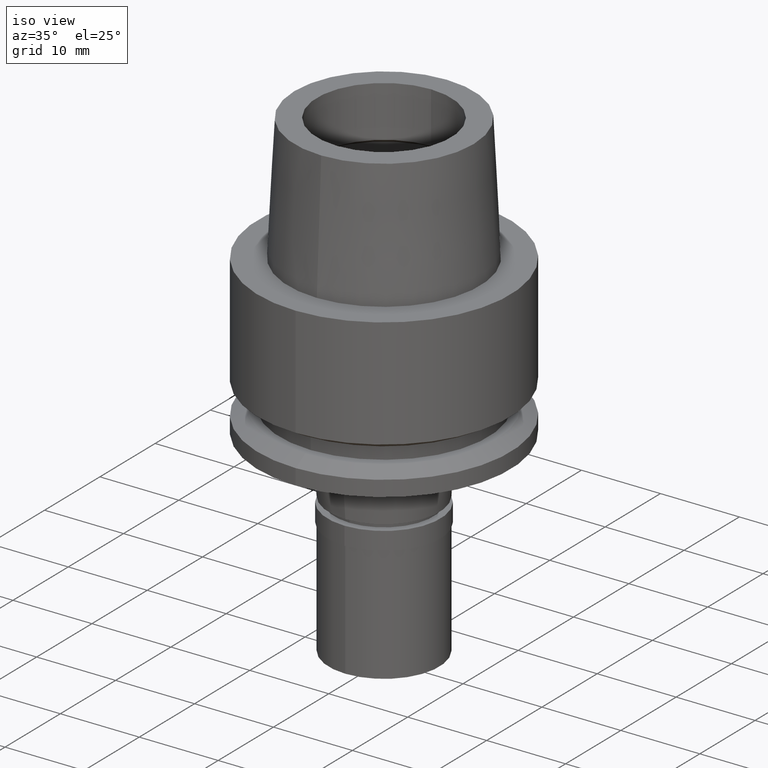
[diagram: clean part render]
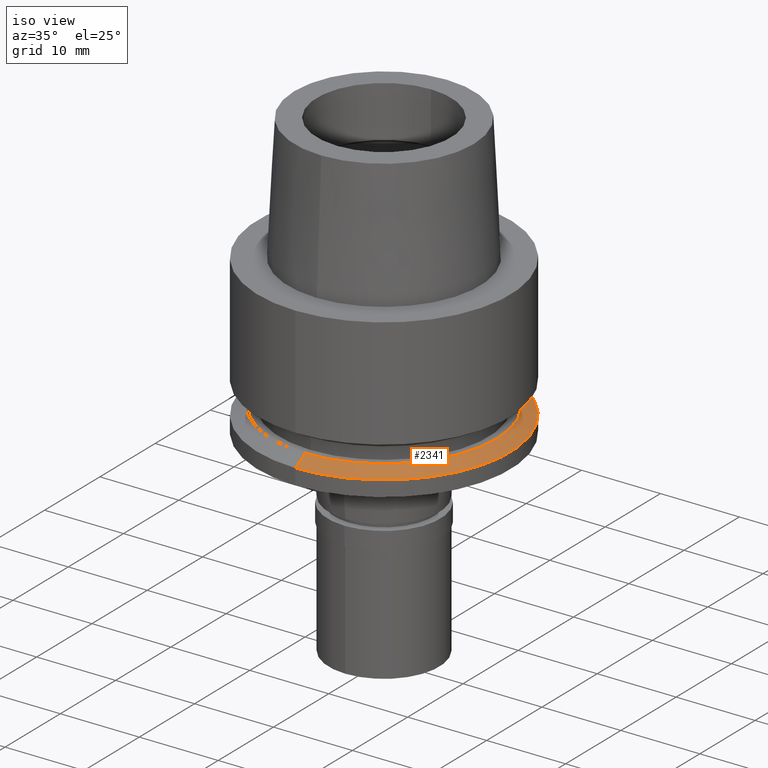
[diagram: same view with one face highlighted and labeled with its STEP entity id]
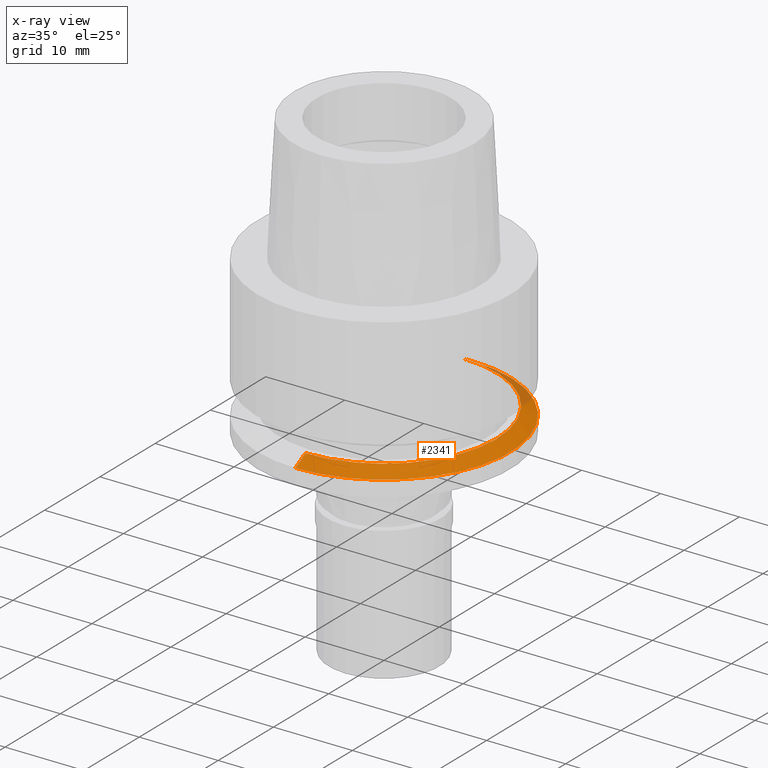
[diagram: x-ray of the same camera — body ghosted, the highlighted face saturated]
A machine part, iso view. The second image highlights one B-rep face of the part: STEP entity #2341.
The next image is the same camera in x-ray: the body ghosted, the highlighted face saturated — about 7% of this face is hidden behind the body in this view.
In plain terms, the highlighted conical surface has half-angle 60 deg.
Its self-contained STEP definition (entity closure, byte-faithful):
#56 = AXIS2_PLACEMENT_3D ( 'NONE', #1967, #2143, #1745 ) ;
#87 = VERTEX_POINT ( 'NONE', #1931 ) ;
#106 = EDGE_CURVE ( 'NONE', #861, #1443, #1544, .T. ) ;
#157 = EDGE_CURVE ( 'NONE', #876, #1443, #2019, .T. ) ;
#290 = EDGE_CURVE ( 'NONE', #87, #876, #1941, .T. ) ;
#339 = CARTESIAN_POINT ( 'NONE',  ( 0.0000000000000000000, 14.23205080756999941, -17.00000000000000000 ) ) ;
#423 = CARTESIAN_POINT ( 'NONE',  ( 0.0000000000000000000, -14.23205080756999941, -17.00000000000000000 ) ) ;
#498 = CARTESIAN_POINT ( 'NONE',  ( 0.0000000000000000000, -16.00000000000000000, -18.02072594216000212 ) ) ;
#565 = EDGE_CURVE ( 'NONE', #87, #861, #2597, .T. ) ;
#650 = DIRECTION ( 'NONE',  ( 0.0000000000000000000, 0.0000000000000000000, -1.000000000000000000 ) ) ;
#800 = VECTOR ( 'NONE', #2569, 1000.000000000000000 ) ;
#861 = VERTEX_POINT ( 'NONE', #1871 ) ;
#876 = VERTEX_POINT ( 'NONE', #423 ) ;
#891 = AXIS2_PLACEMENT_3D ( 'NONE', #1387, #1347, #2606 ) ;
#954 = FACE_OUTER_BOUND ( 'NONE', #2280, .T. ) ;
#1004 = CARTESIAN_POINT ( 'NONE',  ( 0.0000000000000000000, -14.23205080756999941, -17.00000000000000000 ) ) ;
#1053 = CARTESIAN_POINT ( 'NONE',  ( 0.0000000000000000000, 0.0000000000000000000, -17.00000000000000000 ) ) ;
#1284 = ORIENTED_EDGE ( 'NONE', *, *, #106, .F. ) ;
#1291 = DIRECTION ( 'NONE',  ( 0.0000000000000000000, 1.000000000000000000, 0.0000000000000000000 ) ) ;
#1347 = DIRECTION ( 'NONE',  ( 0.0000000000000000000, 0.0000000000000000000, -1.000000000000000000 ) ) ;
#1387 = CARTESIAN_POINT ( 'NONE',  ( 0.0000000000000000000, 0.0000000000000000000, -17.51036297107999928 ) ) ;
#1442 = ORIENTED_EDGE ( 'NONE', *, *, #565, .F. ) ;
#1443 = VERTEX_POINT ( 'NONE', #498 ) ;
#1544 = CIRCLE ( 'NONE', #56, 16.00000000000000000 ) ;
#1654 = DIRECTION ( 'NONE',  ( 0.0000000000000000000, -0.8660254037847886499, -0.4999999999993937627 ) ) ;
#1662 = ORIENTED_EDGE ( 'NONE', *, *, #157, .T. ) ;
#1745 = DIRECTION ( 'NONE',  ( 0.0000000000000000000, 1.000000000000000000, 0.0000000000000000000 ) ) ;
#1871 = CARTESIAN_POINT ( 'NONE',  ( 0.0000000000000000000, 16.00000000000000000, -18.02072594216000212 ) ) ;
#1891 = ORIENTED_EDGE ( 'NONE', *, *, #290, .T. ) ;
#1931 = CARTESIAN_POINT ( 'NONE',  ( 0.0000000000000000000, 14.23205080756999941, -17.00000000000000000 ) ) ;
#1941 = CIRCLE ( 'NONE', #2454, 14.23205080756999941 ) ;
#1967 = CARTESIAN_POINT ( 'NONE',  ( 0.0000000000000000000, 0.0000000000000000000, -18.02072594216000212 ) ) ;
#2019 = LINE ( 'NONE', #1004, #2412 ) ;
#2143 = DIRECTION ( 'NONE',  ( 0.0000000000000000000, 0.0000000000000000000, -1.000000000000000000 ) ) ;
#2280 = EDGE_LOOP ( 'NONE', ( #1891, #1662, #1284, #1442 ) ) ;
#2288 = CONICAL_SURFACE ( 'NONE', #891, 15.11602540378000015, 1.047197551196400456 ) ;
#2341 = ADVANCED_FACE ( 'NONE', ( #954 ), #2288, .T. ) ;
#2412 = VECTOR ( 'NONE', #1654, 1000.000000000000000 ) ;
#2454 = AXIS2_PLACEMENT_3D ( 'NONE', #1053, #650, #1291 ) ;
#2569 = DIRECTION ( 'NONE',  ( 0.0000000000000000000, 0.8660254037847886499, -0.4999999999993937627 ) ) ;
#2597 = LINE ( 'NONE', #339, #800 ) ;
#2606 = DIRECTION ( 'NONE',  ( 0.0000000000000000000, -1.000000000000000000, 0.0000000000000000000 ) ) ;